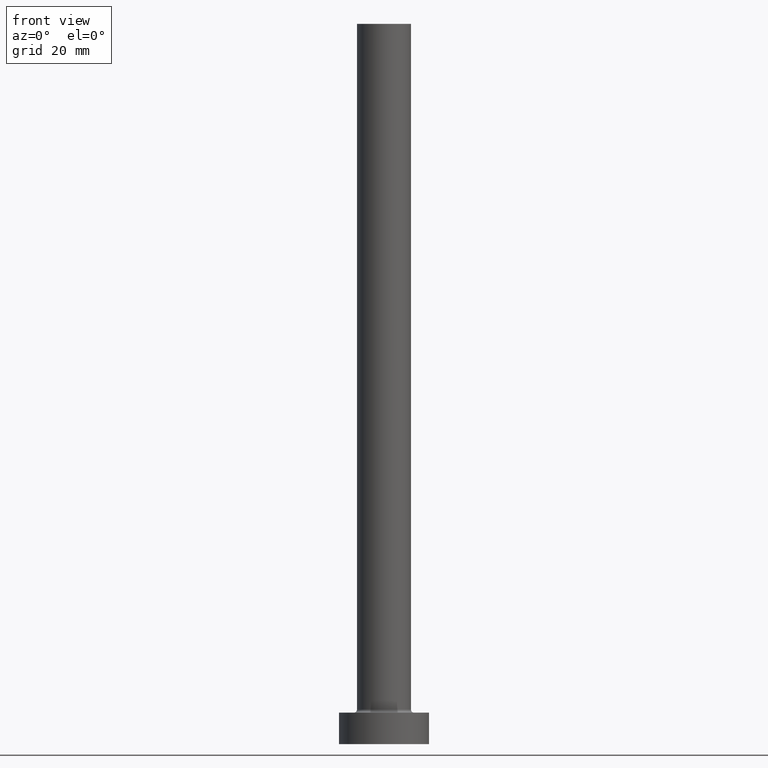
[diagram: clean part render]
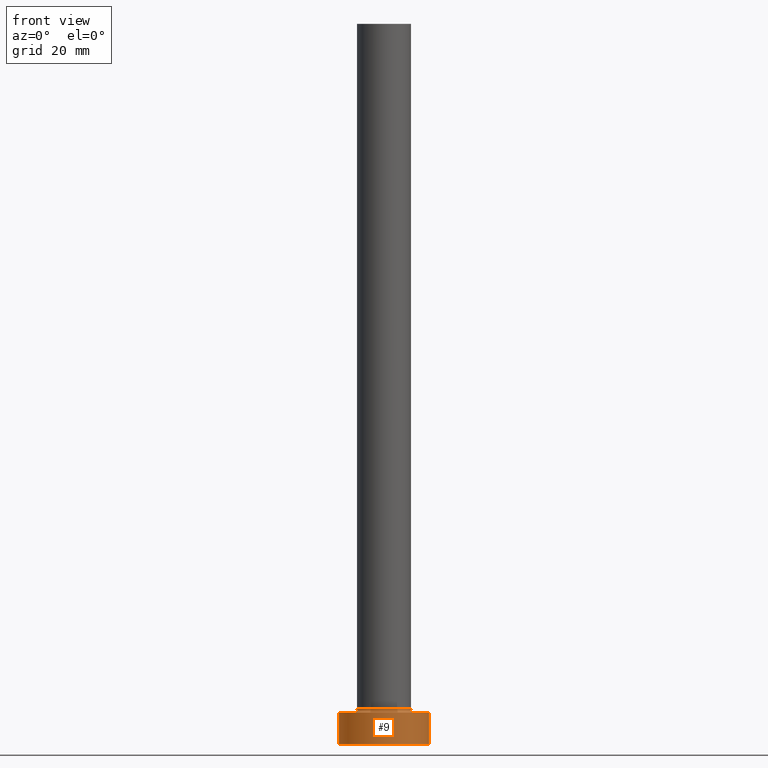
[diagram: same view with one face highlighted and labeled with its STEP entity id]
A machine part, front view. The second image highlights one B-rep face of the part: STEP entity #9.
In plain terms, the highlighted cylindrical surface (partial cylindrical patch) has radius 10 mm, axis along (-0, -0, -1).
Its self-contained STEP definition (entity closure, byte-faithful):
#1 = DIRECTION ( 'NONE',  ( -0.000000000000000000, -0.000000000000000000, -1.000000000000000000 ) ) ;
#2 = DIRECTION ( 'NONE',  ( 1.000000000000000000, 0.000000000000000000, 0.000000000000000000 ) ) ;
#9 = ADVANCED_FACE ( 'NONE', ( #32 ), #175, .T. ) ;
#24 = EDGE_CURVE ( 'NONE', #227, #41, #65, .T. ) ;
#32 = FACE_OUTER_BOUND ( 'NONE', #362, .T. ) ;
#37 = VERTEX_POINT ( 'NONE', #148 ) ;
#41 = VERTEX_POINT ( 'NONE', #423 ) ;
#46 = CARTESIAN_POINT ( 'NONE',  ( 10.00000000000000000, 1.224646799147353256E-15, 7.000000000000000000 ) ) ;
#53 = AXIS2_PLACEMENT_3D ( 'NONE', #323, #457, #2 ) ;
#58 = CARTESIAN_POINT ( 'NONE',  ( 0.000000000000000000, 0.000000000000000000, 7.000000000000000000 ) ) ;
#65 = LINE ( 'NONE', #219, #345 ) ;
#76 = ORIENTED_EDGE ( 'NONE', *, *, #363, .F. ) ;
#93 = AXIS2_PLACEMENT_3D ( 'NONE', #58, #315, #421 ) ;
#100 = CIRCLE ( 'NONE', #53, 10.00000000000000000 ) ;
#112 = ORIENTED_EDGE ( 'NONE', *, *, #24, .F. ) ;
#124 = ORIENTED_EDGE ( 'NONE', *, *, #169, .T. ) ;
#138 = EDGE_CURVE ( 'NONE', #290, #41, #100, .T. ) ;
#148 = CARTESIAN_POINT ( 'NONE',  ( -10.00000000000000000, 0.000000000000000000, 7.000000000000000000 ) ) ;
#169 = EDGE_CURVE ( 'NONE', #37, #290, #317, .T. ) ;
#175 = CYLINDRICAL_SURFACE ( 'NONE', #403, 10.00000000000000000 ) ;
#214 = CARTESIAN_POINT ( 'NONE',  ( 0.000000000000000000, 0.000000000000000000, 7.000000000000000000 ) ) ;
#219 = CARTESIAN_POINT ( 'NONE',  ( 10.00000000000000000, 1.224646799147353256E-15, 7.000000000000000000 ) ) ;
#227 = VERTEX_POINT ( 'NONE', #46 ) ;
#290 = VERTEX_POINT ( 'NONE', #407 ) ;
#291 = CARTESIAN_POINT ( 'NONE',  ( -10.00000000000000000, 0.000000000000000000, 7.000000000000000000 ) ) ;
#300 = ORIENTED_EDGE ( 'NONE', *, *, #138, .T. ) ;
#312 = VECTOR ( 'NONE', #433, 1000.000000000000000 ) ;
#315 = DIRECTION ( 'NONE',  ( 0.000000000000000000, 0.000000000000000000, 1.000000000000000000 ) ) ;
#317 = LINE ( 'NONE', #291, #312 ) ;
#323 = CARTESIAN_POINT ( 'NONE',  ( 0.000000000000000000, 0.000000000000000000, 0.000000000000000000 ) ) ;
#342 = CIRCLE ( 'NONE', #93, 10.00000000000000000 ) ;
#345 = VECTOR ( 'NONE', #1, 1000.000000000000000 ) ;
#362 = EDGE_LOOP ( 'NONE', ( #112, #76, #124, #300 ) ) ;
#363 = EDGE_CURVE ( 'NONE', #37, #227, #342, .T. ) ;
#403 = AXIS2_PLACEMENT_3D ( 'NONE', #214, #456, #431 ) ;
#407 = CARTESIAN_POINT ( 'NONE',  ( -10.00000000000000000, 0.000000000000000000, 0.000000000000000000 ) ) ;
#421 = DIRECTION ( 'NONE',  ( 1.000000000000000000, 0.000000000000000000, 0.000000000000000000 ) ) ;
#423 = CARTESIAN_POINT ( 'NONE',  ( 10.00000000000000000, 1.224646799147353256E-15, 0.000000000000000000 ) ) ;
#431 = DIRECTION ( 'NONE',  ( -1.000000000000000000, 0.000000000000000000, 0.000000000000000000 ) ) ;
#433 = DIRECTION ( 'NONE',  ( -0.000000000000000000, -0.000000000000000000, -1.000000000000000000 ) ) ;
#456 = DIRECTION ( 'NONE',  ( -0.000000000000000000, -0.000000000000000000, -1.000000000000000000 ) ) ;
#457 = DIRECTION ( 'NONE',  ( 0.000000000000000000, 0.000000000000000000, 1.000000000000000000 ) ) ;